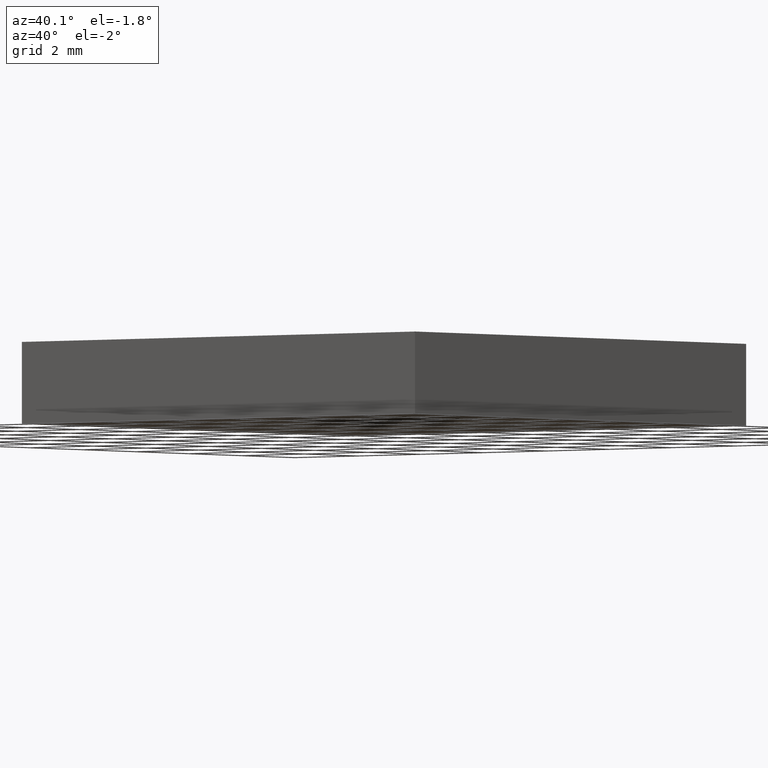
[diagram: clean part render]
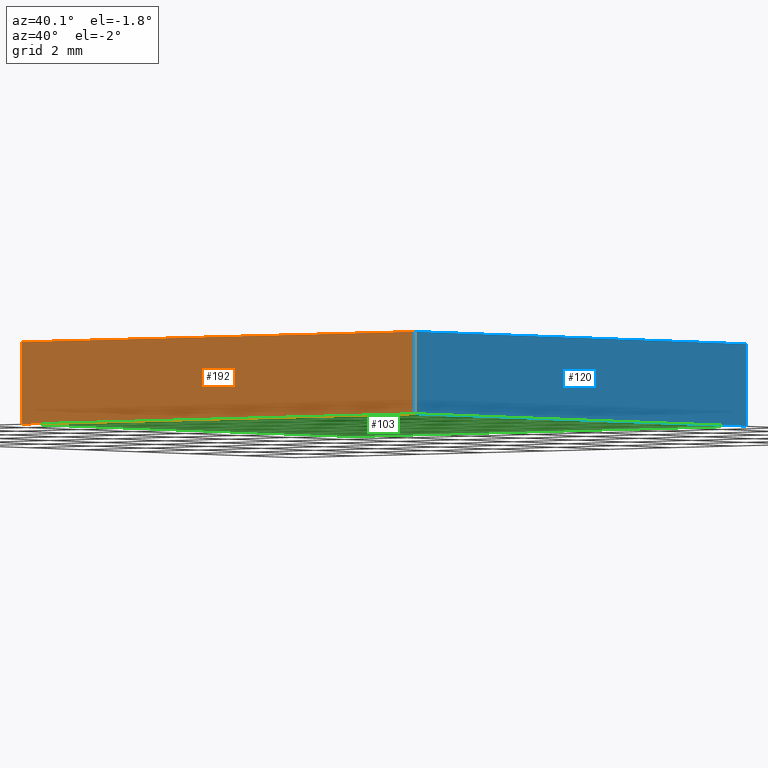
[diagram: same view with three faces highlighted in distinct colors, each labeled with its STEP entity id]
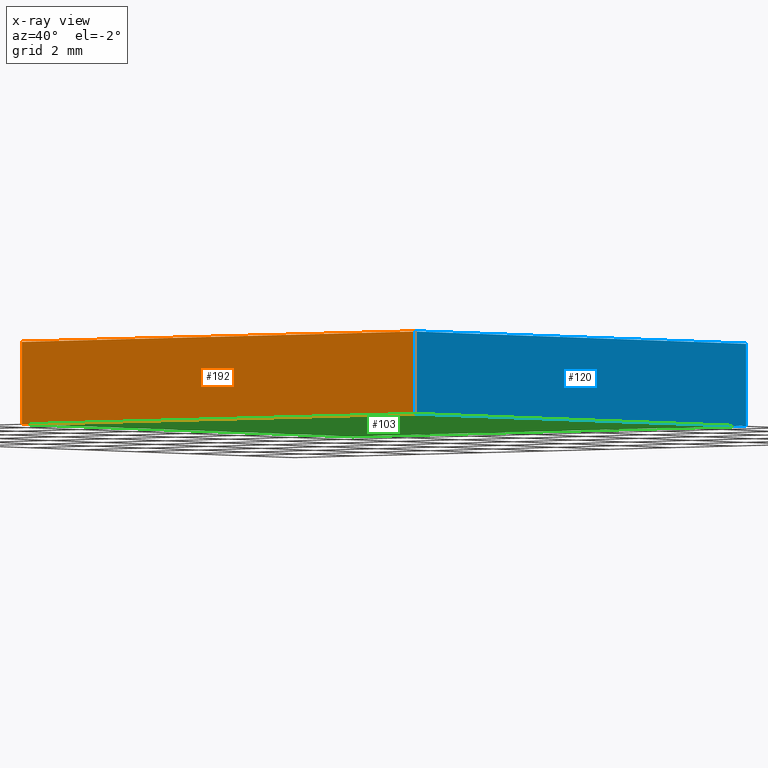
[diagram: x-ray of the same camera — body ghosted, the three highlighted faces saturated]
A machine part, auxiliary view with three faces highlighted in distinct colors.
The next image is the same camera in x-ray (body ghosted, the three faces saturated) — at least one of them is partly hidden behind the body in this view.
Their STEP definitions:

[orange] entity #192 — the highlighted planar face has unit normal (0, 1, -0).
#6 = DIRECTION ( 'NONE',  ( -0.0000000000000000000, -0.0000000000000000000, -1.000000000000000000 ) ) ;
#8 = VERTEX_POINT ( 'NONE', #149 ) ;
#28 = EDGE_CURVE ( 'NONE', #104, #76, #94, .T. ) ;
#33 = VERTEX_POINT ( 'NONE', #48 ) ;
#40 = EDGE_CURVE ( 'NONE', #8, #104, #43, .T. ) ;
#43 = LINE ( 'NONE', #146, #79 ) ;
#46 = LINE ( 'NONE', #131, #188 ) ;
#48 = CARTESIAN_POINT ( 'NONE',  ( 116.6543858644214900, 32.39658967450770900, 2.000000000000000000 ) ) ;
#59 = EDGE_CURVE ( 'NONE', #8, #33, #107, .T. ) ;
#62 = ORIENTED_EDGE ( 'NONE', *, *, #90, .F. ) ;
#63 = CARTESIAN_POINT ( 'NONE',  ( 116.6543858644214900, 32.39658967450770900, 0.0000000000000000000 ) ) ;
#65 = DIRECTION ( 'NONE',  ( 1.000000000000000000, -0.0000000000000000000, -0.0000000000000000000 ) ) ;
#76 = VERTEX_POINT ( 'NONE', #63 ) ;
#79 = VECTOR ( 'NONE', #175, 1000.000000000000000 ) ;
#81 = FACE_OUTER_BOUND ( 'NONE', #113, .T. ) ;
#90 = EDGE_CURVE ( 'NONE', #33, #76, #46, .T. ) ;
#94 = LINE ( 'NONE', #162, #143 ) ;
#97 = DIRECTION ( 'NONE',  ( 1.000000000000000000, -0.0000000000000000000, -0.0000000000000000000 ) ) ;
#104 = VERTEX_POINT ( 'NONE', #117 ) ;
#106 = ORIENTED_EDGE ( 'NONE', *, *, #28, .T. ) ;
#107 = LINE ( 'NONE', #112, #176 ) ;
#112 = CARTESIAN_POINT ( 'NONE',  ( 116.6543858644214900, 32.39658967450770900, 2.000000000000000000 ) ) ;
#113 = EDGE_LOOP ( 'NONE', ( #106, #62, #170, #156 ) ) ;
#117 = CARTESIAN_POINT ( 'NONE',  ( 104.1543858644214700, 32.39658967450770900, 0.0000000000000000000 ) ) ;
#119 = DIRECTION ( 'NONE',  ( 0.0000000000000000000, 1.000000000000000000, -0.0000000000000000000 ) ) ;
#121 = DIRECTION ( 'NONE',  ( 0.0000000000000000000, 0.0000000000000000000, 1.000000000000000000 ) ) ;
#131 = CARTESIAN_POINT ( 'NONE',  ( 116.6543858644214900, 32.39658967450770900, 2.000000000000000000 ) ) ;
#132 = PLANE ( 'NONE',  #141 ) ;
#141 = AXIS2_PLACEMENT_3D ( 'NONE', #151, #119, #121 ) ;
#143 = VECTOR ( 'NONE', #65, 1000.000000000000000 ) ;
#146 = CARTESIAN_POINT ( 'NONE',  ( 104.1543858644214700, 32.39658967450770900, 2.000000000000000000 ) ) ;
#149 = CARTESIAN_POINT ( 'NONE',  ( 104.1543858644214700, 32.39658967450770900, 2.000000000000000000 ) ) ;
#151 = CARTESIAN_POINT ( 'NONE',  ( 116.6543858644214900, 32.39658967450770900, 2.000000000000000000 ) ) ;
#156 = ORIENTED_EDGE ( 'NONE', *, *, #40, .T. ) ;
#162 = CARTESIAN_POINT ( 'NONE',  ( 116.6543858644214900, 32.39658967450770900, 0.0000000000000000000 ) ) ;
#170 = ORIENTED_EDGE ( 'NONE', *, *, #59, .F. ) ;
#175 = DIRECTION ( 'NONE',  ( -0.0000000000000000000, -0.0000000000000000000, -1.000000000000000000 ) ) ;
#176 = VECTOR ( 'NONE', #97, 1000.000000000000000 ) ;
#188 = VECTOR ( 'NONE', #6, 1000.000000000000000 ) ;
#192 = ADVANCED_FACE ( 'NONE', ( #81 ), #132, .F. ) ;

[blue] entity #120 — the highlighted planar face has unit normal (-1, 0, 0).
#3 = FACE_OUTER_BOUND ( 'NONE', #49, .T. ) ;
#6 = DIRECTION ( 'NONE',  ( -0.0000000000000000000, -0.0000000000000000000, -1.000000000000000000 ) ) ;
#11 = EDGE_CURVE ( 'NONE', #33, #66, #171, .T. ) ;
#15 = CARTESIAN_POINT ( 'NONE',  ( 116.6543858644214900, 44.89658967450770900, 2.000000000000000000 ) ) ;
#18 = DIRECTION ( 'NONE',  ( 0.0000000000000000000, 0.0000000000000000000, 1.000000000000000000 ) ) ;
#21 = CARTESIAN_POINT ( 'NONE',  ( 116.6543858644214900, 44.89658967450770900, 0.0000000000000000000 ) ) ;
#30 = DIRECTION ( 'NONE',  ( -0.0000000000000000000, 1.000000000000000000, -0.0000000000000000000 ) ) ;
#33 = VERTEX_POINT ( 'NONE', #48 ) ;
#35 = ORIENTED_EDGE ( 'NONE', *, *, #11, .F. ) ;
#36 = DIRECTION ( 'NONE',  ( -1.000000000000000000, 0.0000000000000000000, 0.0000000000000000000 ) ) ;
#42 = VECTOR ( 'NONE', #167, 1000.000000000000000 ) ;
#45 = CARTESIAN_POINT ( 'NONE',  ( 116.6543858644214900, 44.89658967450770900, 2.000000000000000000 ) ) ;
#46 = LINE ( 'NONE', #131, #188 ) ;
#48 = CARTESIAN_POINT ( 'NONE',  ( 116.6543858644214900, 32.39658967450770900, 2.000000000000000000 ) ) ;
#49 = EDGE_LOOP ( 'NONE', ( #85, #70, #35, #152 ) ) ;
#54 = CARTESIAN_POINT ( 'NONE',  ( 116.6543858644214900, 44.89658967450770900, 2.000000000000000000 ) ) ;
#63 = CARTESIAN_POINT ( 'NONE',  ( 116.6543858644214900, 32.39658967450770900, 0.0000000000000000000 ) ) ;
#66 = VERTEX_POINT ( 'NONE', #45 ) ;
#70 = ORIENTED_EDGE ( 'NONE', *, *, #125, .F. ) ;
#73 = PLANE ( 'NONE',  #158 ) ;
#76 = VERTEX_POINT ( 'NONE', #63 ) ;
#85 = ORIENTED_EDGE ( 'NONE', *, *, #191, .T. ) ;
#89 = CARTESIAN_POINT ( 'NONE',  ( 116.6543858644214900, 44.89658967450770900, 0.0000000000000000000 ) ) ;
#90 = EDGE_CURVE ( 'NONE', #33, #76, #46, .T. ) ;
#101 = CARTESIAN_POINT ( 'NONE',  ( 116.6543858644214900, 44.89658967450770900, 2.000000000000000000 ) ) ;
#111 = LINE ( 'NONE', #21, #124 ) ;
#120 = ADVANCED_FACE ( 'NONE', ( #3 ), #73, .F. ) ;
#124 = VECTOR ( 'NONE', #193, 1000.000000000000000 ) ;
#125 = EDGE_CURVE ( 'NONE', #66, #148, #164, .T. ) ;
#131 = CARTESIAN_POINT ( 'NONE',  ( 116.6543858644214900, 32.39658967450770900, 2.000000000000000000 ) ) ;
#148 = VERTEX_POINT ( 'NONE', #89 ) ;
#152 = ORIENTED_EDGE ( 'NONE', *, *, #90, .T. ) ;
#158 = AXIS2_PLACEMENT_3D ( 'NONE', #54, #36, #18 ) ;
#164 = LINE ( 'NONE', #101, #42 ) ;
#167 = DIRECTION ( 'NONE',  ( -0.0000000000000000000, -0.0000000000000000000, -1.000000000000000000 ) ) ;
#168 = VECTOR ( 'NONE', #30, 1000.000000000000000 ) ;
#171 = LINE ( 'NONE', #15, #168 ) ;
#188 = VECTOR ( 'NONE', #6, 1000.000000000000000 ) ;
#191 = EDGE_CURVE ( 'NONE', #76, #148, #111, .T. ) ;
#193 = DIRECTION ( 'NONE',  ( -0.0000000000000000000, 1.000000000000000000, -0.0000000000000000000 ) ) ;

[green] entity #103 — the highlighted planar face has unit normal (0, 0, -1).
#20 = DIRECTION ( 'NONE',  ( -1.000000000000000000, 0.0000000000000000000, -0.0000000000000000000 ) ) ;
#21 = CARTESIAN_POINT ( 'NONE',  ( 116.6543858644214900, 44.89658967450770900, 0.0000000000000000000 ) ) ;
#28 = EDGE_CURVE ( 'NONE', #104, #76, #94, .T. ) ;
#31 = DIRECTION ( 'NONE',  ( -1.000000000000000000, -0.0000000000000000000, -0.0000000000000000000 ) ) ;
#44 = ORIENTED_EDGE ( 'NONE', *, *, #80, .F. ) ;
#53 = EDGE_CURVE ( 'NONE', #148, #139, #184, .T. ) ;
#58 = FACE_OUTER_BOUND ( 'NONE', #127, .T. ) ;
#63 = CARTESIAN_POINT ( 'NONE',  ( 116.6543858644214900, 32.39658967450770900, 0.0000000000000000000 ) ) ;
#65 = DIRECTION ( 'NONE',  ( 1.000000000000000000, -0.0000000000000000000, -0.0000000000000000000 ) ) ;
#68 = CARTESIAN_POINT ( 'NONE',  ( 0.0000000000000000000, 0.0000000000000000000, 0.0000000000000000000 ) ) ;
#76 = VERTEX_POINT ( 'NONE', #63 ) ;
#78 = LINE ( 'NONE', #147, #160 ) ;
#80 = EDGE_CURVE ( 'NONE', #139, #104, #78, .T. ) ;
#82 = CARTESIAN_POINT ( 'NONE',  ( 104.1543858644214700, 44.89658967450770900, 0.0000000000000000000 ) ) ;
#88 = DIRECTION ( 'NONE',  ( 0.0000000000000000000, 0.0000000000000000000, -1.000000000000000000 ) ) ;
#89 = CARTESIAN_POINT ( 'NONE',  ( 116.6543858644214900, 44.89658967450770900, 0.0000000000000000000 ) ) ;
#94 = LINE ( 'NONE', #162, #143 ) ;
#103 = ADVANCED_FACE ( 'NONE', ( #58 ), #154, .T. ) ;
#104 = VERTEX_POINT ( 'NONE', #117 ) ;
#111 = LINE ( 'NONE', #21, #124 ) ;
#117 = CARTESIAN_POINT ( 'NONE',  ( 104.1543858644214700, 32.39658967450770900, 0.0000000000000000000 ) ) ;
#123 = ORIENTED_EDGE ( 'NONE', *, *, #191, .F. ) ;
#124 = VECTOR ( 'NONE', #193, 1000.000000000000000 ) ;
#127 = EDGE_LOOP ( 'NONE', ( #200, #44, #140, #123 ) ) ;
#133 = CARTESIAN_POINT ( 'NONE',  ( 104.1543858644214700, 44.89658967450770900, 0.0000000000000000000 ) ) ;
#139 = VERTEX_POINT ( 'NONE', #133 ) ;
#140 = ORIENTED_EDGE ( 'NONE', *, *, #53, .F. ) ;
#143 = VECTOR ( 'NONE', #65, 1000.000000000000000 ) ;
#147 = CARTESIAN_POINT ( 'NONE',  ( 104.1543858644214700, 38.64658967450770900, 0.0000000000000000000 ) ) ;
#148 = VERTEX_POINT ( 'NONE', #89 ) ;
#154 = PLANE ( 'NONE',  #174 ) ;
#160 = VECTOR ( 'NONE', #183, 1000.000000000000000 ) ;
#162 = CARTESIAN_POINT ( 'NONE',  ( 116.6543858644214900, 32.39658967450770900, 0.0000000000000000000 ) ) ;
#174 = AXIS2_PLACEMENT_3D ( 'NONE', #68, #88, #20 ) ;
#183 = DIRECTION ( 'NONE',  ( -0.0000000000000000000, -1.000000000000000000, -0.0000000000000000000 ) ) ;
#184 = LINE ( 'NONE', #82, #197 ) ;
#191 = EDGE_CURVE ( 'NONE', #76, #148, #111, .T. ) ;
#193 = DIRECTION ( 'NONE',  ( -0.0000000000000000000, 1.000000000000000000, -0.0000000000000000000 ) ) ;
#197 = VECTOR ( 'NONE', #31, 1000.000000000000000 ) ;
#200 = ORIENTED_EDGE ( 'NONE', *, *, #28, .F. ) ;